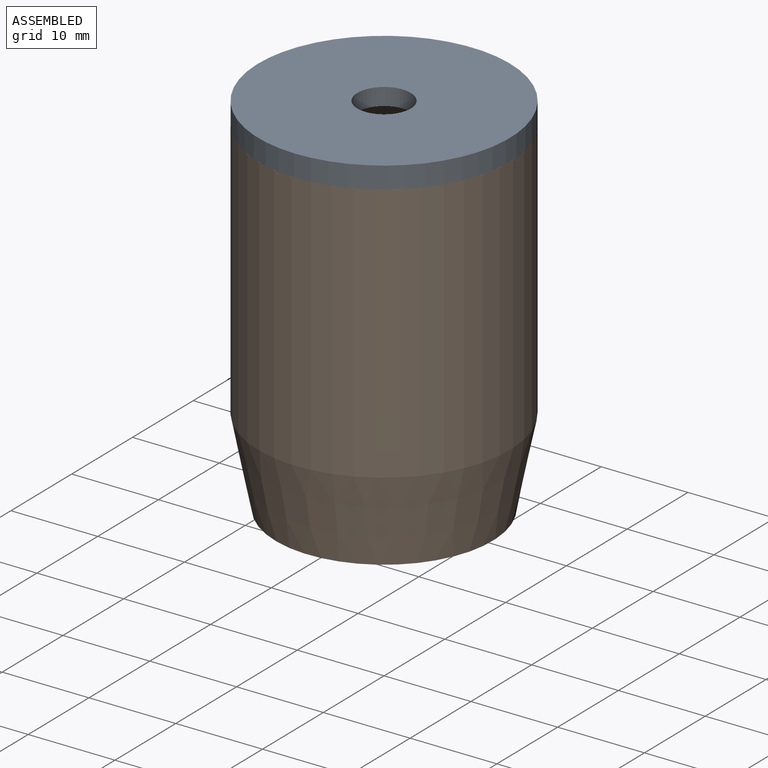
[diagram: assembled view]
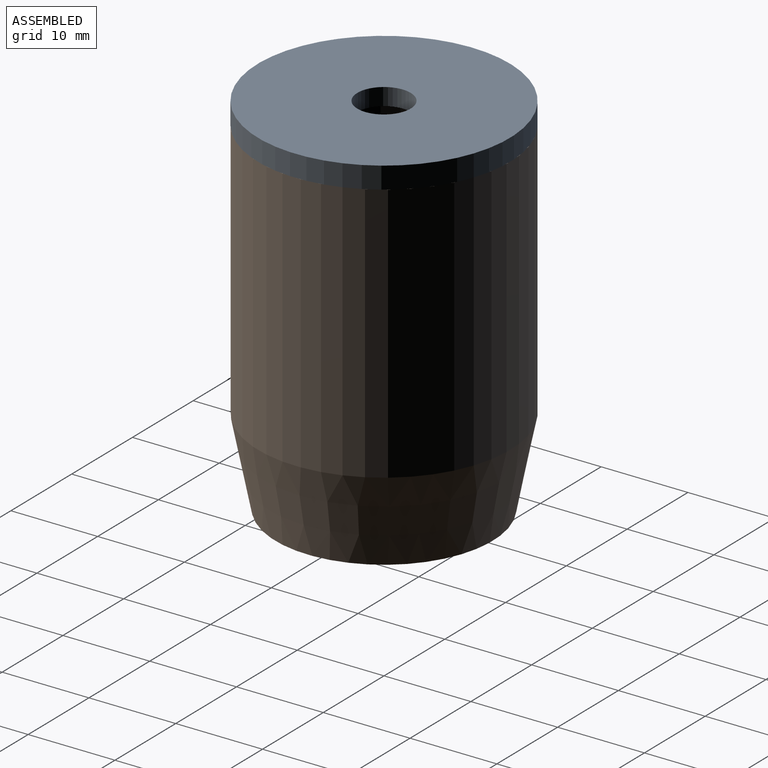
[diagram: assembled view, second angle]
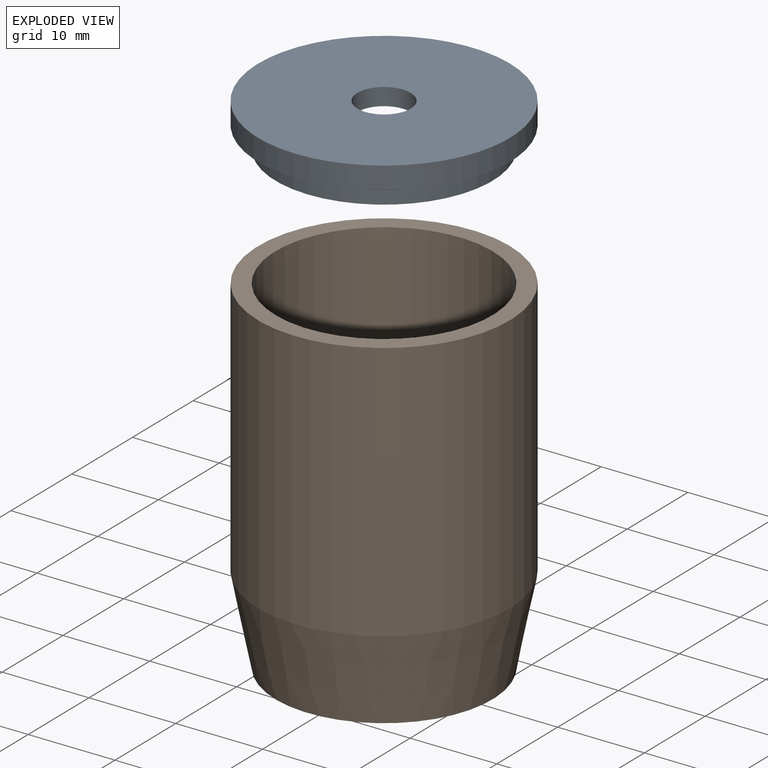
[diagram: exploded view]
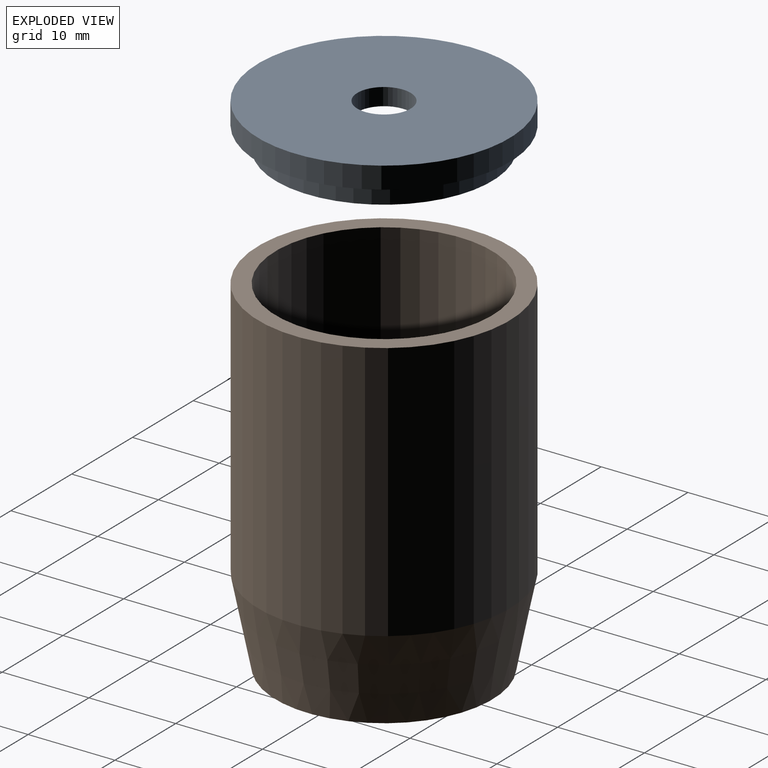
[diagram: exploded view, second angle]
ASSEMBLY  parts=2 mates=2
PART A: 8 faces, bbox 29x29x5 mm
  f0: plane 29x29mm, normal (0,0,1), area 630.8mm2, adj f1,f7
  f1: cylinder r=3.08mm len=6.15mm, axis (0,0,-1), area 38.6mm2, adj f0,f2
  f2: plane 20x20mm, normal (0,0,-1), area 284.5mm2, adj f1,f3
  f3: cylinder r=10mm len=20mm, axis (0,0,-1), area 188.5mm2, adj f2,f4
  f4: plane 25x25mm, normal (0,0,-1), area 176.7mm2, adj f3,f5
  f5: cylinder r=12.5mm len=25mm, axis (0,0,-1), area 196.3mm2, adj f4,f6
  f6: plane 29x29mm, normal (0,0,-1), area 169.6mm2, adj f5,f7
  f7: cylinder r=14.5mm len=29mm, axis (0,0,-1), area 227.8mm2, adj f0,f6
PART B: 9 faces, bbox 29x29x40 mm
  f0: cylinder r=10.5mm len=21mm, axis (0,0,-1), area 659.7mm2, adj f1,f8
  f1: plane 25x25mm, normal (0,0,-1), area 144.5mm2, adj f0,f2
  f2: cone r=14.5mm half-angle=11.3deg, axis (0,0,1), area 865mm2, adj f1,f3
  f3: cylinder r=14.5mm len=30mm, axis (0,0,-1), area 2733.2mm2, adj f2,f4
  f4: plane 29x29mm, normal (0,0,1), area 169.6mm2, adj f3,f5
  f5: cylinder r=12.5mm len=28mm, axis (0,0,-1), area 2199.1mm2, adj f4,f6
  f6: plane 25x25mm, normal (0,0,1), area 481.8mm2, adj f5,f7
  f7: cylinder r=1.7mm len=3.4mm, axis (0,0,-1), area 21.4mm2, adj f6,f8
  f8: plane 21x21mm, normal (0,0,-1), area 337.3mm2, adj f0,f7
PLACE A rot(axis=(0,0,-1),6.4deg) t=(0,0,37.5)mm
PLACE B rot(axis=(0,0,-1),6.4deg) t=(0,0,0)mm
MATE planar B.f0 <-> A.f1  axis (0,0,1) through (0,0,40)mm
MATE cylindrical A.f1 <-> B.f0  axis (0,0,-1) through (0,0,38.75)mm
